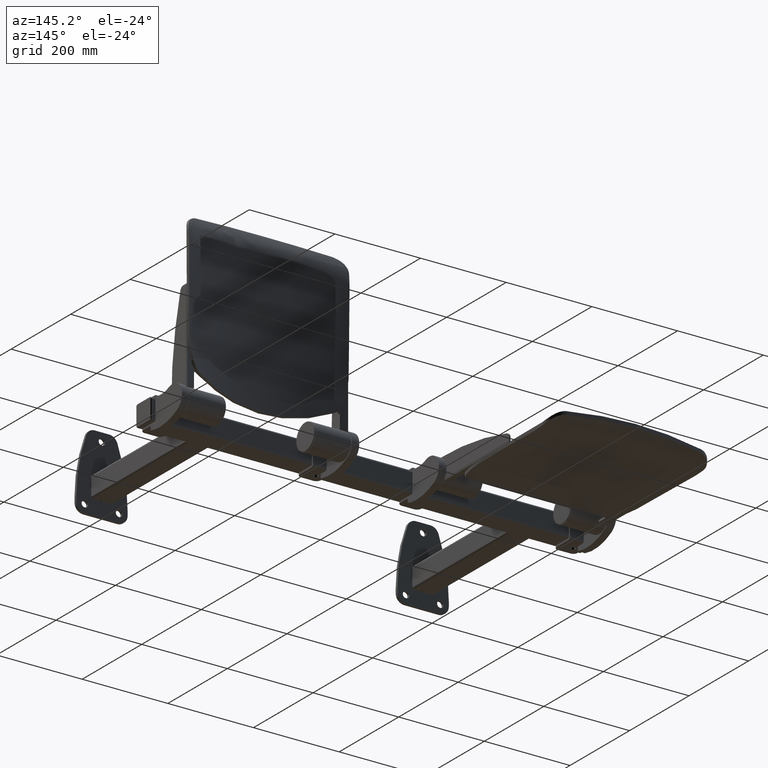
[diagram: clean part render]
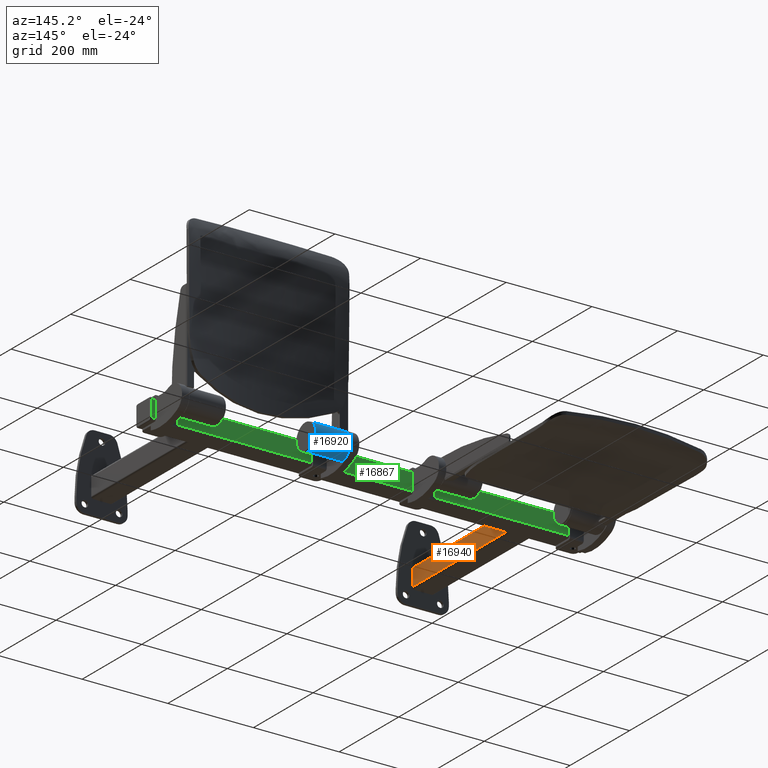
[diagram: same view with three faces highlighted in distinct colors, each labeled with its STEP entity id]
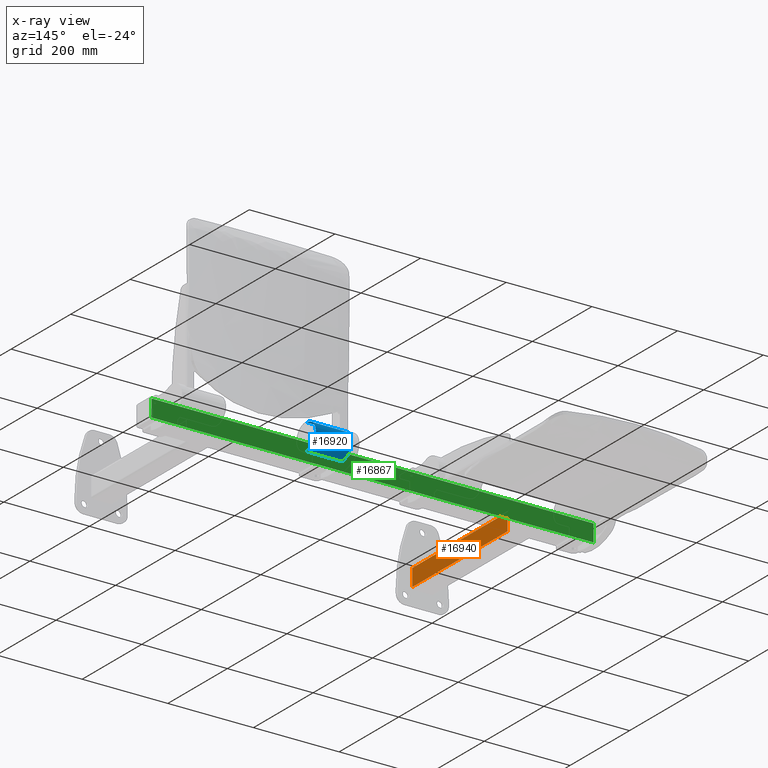
[diagram: x-ray of the same camera — body ghosted, the three highlighted faces saturated]
A machine part, auxiliary view with three faces highlighted in distinct colors.
The next image is the same camera in x-ray (body ghosted, the three faces saturated) — at least one of them is partly hidden behind the body in this view.
Their STEP definitions:

[orange] entity #16940 — the highlighted planar face has unit normal (-1, 0, 0).
#24 = AXIS2_PLACEMENT_3D ( 'NONE', #12895, #12900, #12901 ) ;
#176 = CARTESIAN_POINT ( 'NONE',  ( -349.9999999999999400, 326.0000000000000000, -19.99999999999999600 ) ) ;
#181 = CARTESIAN_POINT ( 'NONE',  ( -349.9999999999999400, 326.0000000000000000, 20.00000000000000000 ) ) ;
#1730 = FACE_OUTER_BOUND ( 'NONE', #14905, .T. ) ;
#1770 = DIRECTION ( 'NONE',  ( -0.0000000000000000000, -0.0000000000000000000, -1.000000000000000000 ) ) ;
#1776 = CARTESIAN_POINT ( 'NONE',  ( -350.0000000000000000, 6.000000000000000000, 25.00000000000000000 ) ) ;
#2029 = VERTEX_POINT ( 'NONE', #176 ) ;
#2034 = VERTEX_POINT ( 'NONE', #181 ) ;
#2381 = CARTESIAN_POINT ( 'NONE',  ( -350.0000000000000000, 6.000000000000000000, 20.00000000000000000 ) ) ;
#2382 = DIRECTION ( 'NONE',  ( -1.734723475976807100E-016, -1.000000000000000000, -0.0000000000000000000 ) ) ;
#2397 = DIRECTION ( 'NONE',  ( -0.0000000000000000000, -0.0000000000000000000, -1.000000000000000000 ) ) ;
#2401 = CARTESIAN_POINT ( 'NONE',  ( -349.9999999999999400, 326.0000000000000000, 25.00000000000000000 ) ) ;
#2404 = CARTESIAN_POINT ( 'NONE',  ( -349.9999999999999400, 326.0000000000000000, -19.99999999999999600 ) ) ;
#2405 = DIRECTION ( 'NONE',  ( 1.734723475976807100E-016, 1.000000000000000000, 0.0000000000000000000 ) ) ;
#6157 = LINE ( 'NONE', #2381, #6164 ) ;
#6164 = VECTOR ( 'NONE', #2382, 1000.000000000000000 ) ;
#6203 = LINE ( 'NONE', #2404, #6209 ) ;
#6209 = VECTOR ( 'NONE', #2405, 1000.000000000000000 ) ;
#6211 = LINE ( 'NONE', #2401, #6216 ) ;
#6216 = VECTOR ( 'NONE', #2397, 1000.000000000000000 ) ;
#12894 = PLANE ( 'NONE',  #24 ) ;
#12895 = CARTESIAN_POINT ( 'NONE',  ( -350.0000000000000000, 6.000000000000000000, 25.00000000000000000 ) ) ;
#12900 = DIRECTION ( 'NONE',  ( -1.000000000000000000, 1.734723475976807100E-016, 0.0000000000000000000 ) ) ;
#12901 = DIRECTION ( 'NONE',  ( -1.734723475976807100E-016, -1.000000000000000000, 0.0000000000000000000 ) ) ;
#13882 = CARTESIAN_POINT ( 'NONE',  ( -350.0000000000000000, 6.000000000000000000, 20.00000000000000000 ) ) ;
#13887 = CARTESIAN_POINT ( 'NONE',  ( -350.0000000000000000, 6.000000000000000000, -19.99999999999999600 ) ) ;
#14455 = ORIENTED_EDGE ( 'NONE', *, *, #15152, .T. ) ;
#14456 = ORIENTED_EDGE ( 'NONE', *, *, #16521, .T. ) ;
#14457 = ORIENTED_EDGE ( 'NONE', *, *, #16523, .F. ) ;
#14469 = ORIENTED_EDGE ( 'NONE', *, *, #16510, .T. ) ;
#14905 = EDGE_LOOP ( 'NONE', ( #14455, #14456, #14457, #14469 ) ) ;
#14912 = VERTEX_POINT ( 'NONE', #13882 ) ;
#14917 = VERTEX_POINT ( 'NONE', #13887 ) ;
#15152 = EDGE_CURVE ( 'NONE', #14912, #14917, #16716, .T. ) ;
#16510 = EDGE_CURVE ( 'NONE', #2034, #14912, #6157, .T. ) ;
#16521 = EDGE_CURVE ( 'NONE', #14917, #2029, #6203, .T. ) ;
#16523 = EDGE_CURVE ( 'NONE', #2034, #2029, #6211, .T. ) ;
#16716 = LINE ( 'NONE', #1776, #16724 ) ;
#16724 = VECTOR ( 'NONE', #1770, 1000.000000000000000 ) ;
#16940 = ADVANCED_FACE ( 'NONE', ( #1730 ), #12894, .F. ) ;

[blue] entity #16920 — the highlighted cylindrical surface (edge-blend (fillet) strip) has radius 30.5 mm, axis along (-1, 0, 0).
#170 = CARTESIAN_POINT ( 'NONE',  ( -188.5000000000000000, 17.99999999999991800, 24.62214450449035000 ) ) ;
#171 = CARTESIAN_POINT ( 'NONE',  ( -188.5000000000000000, 3.735172737399428300E-015, -30.50000000000000000 ) ) ;
#173 = CARTESIAN_POINT ( 'NONE',  ( -188.3698823951482400, 18.82153022471873200, 24.00000000000002100 ) ) ;
#1663 = FACE_OUTER_BOUND ( 'NONE', #14325, .T. ) ;
#1671 = CYLINDRICAL_SURFACE ( 'NONE', #17178, 30.50000000000004300 ) ;
#1894 = CARTESIAN_POINT ( 'NONE',  ( -170.7216098692875300, 15.18417962927588700, 26.45166703604678900 ) ) ;
#1895 = CARTESIAN_POINT ( 'NONE',  ( -184.5000000000000000, -7.518830502887758300E-031, 30.50000000000000000 ) ) ;
#1898 = CARTESIAN_POINT ( 'NONE',  ( -170.5687036239939100, 16.14959166710157500, 25.87355192055945700 ) ) ;
#1899 = CARTESIAN_POINT ( 'NONE',  ( -184.5000000000000000, 17.36646223870187800, 25.07301316778149000 ) ) ;
#1944 = CARTESIAN_POINT ( 'NONE',  ( -184.3116988856748400, 18.55534868448734200, 24.27932724265397000 ) ) ;
#2014 = VERTEX_POINT ( 'NONE', #12605 ) ;
#2020 = VERTEX_POINT ( 'NONE', #12600 ) ;
#2023 = VERTEX_POINT ( 'NONE', #170 ) ;
#2024 = VERTEX_POINT ( 'NONE', #171 ) ;
#2026 = VERTEX_POINT ( 'NONE', #173 ) ;
#2480 = CARTESIAN_POINT ( 'NONE',  ( -106.4999999999999900, 3.735172737399433100E-015, -30.50000000000004300 ) ) ;
#2481 = DIRECTION ( 'NONE',  ( -1.000000000000000000, 0.0000000000000000000, 0.0000000000000000000 ) ) ;
#2482 = CARTESIAN_POINT ( 'NONE',  ( -106.4999999999999900, 0.0000000000000000000, 0.0000000000000000000 ) ) ;
#2483 = DIRECTION ( 'NONE',  ( -1.000000000000000000, 0.0000000000000000000, 0.0000000000000000000 ) ) ;
#2484 = DIRECTION ( 'NONE',  ( 0.0000000000000000000, -2.465190328815658300E-032, 1.000000000000000000 ) ) ;
#4230 = CARTESIAN_POINT ( 'NONE',  ( -106.4999999999999900, -7.518830502887768800E-031, 30.50000000000004300 ) ) ;
#4231 = CARTESIAN_POINT ( 'NONE',  ( -170.5687036239939100, 16.14959166710157500, 25.87355192055945700 ) ) ;
#4232 = DIRECTION ( 'NONE',  ( -1.000000000000000000, 0.0000000000000000000, 0.0000000000000000000 ) ) ;
#4233 = CARTESIAN_POINT ( 'NONE',  ( -170.7216098692875300, 15.18417962927588700, 26.45166703604678900 ) ) ;
#4234 = CARTESIAN_POINT ( 'NONE',  ( -175.4358879174290300, 15.93084791946500500, 26.02305339040149700 ) ) ;
#4235 = CARTESIAN_POINT ( 'NONE',  ( -184.5000000000000000, 0.0000000000000000000, 0.0000000000000000000 ) ) ;
#4236 = DIRECTION ( 'NONE',  ( 1.000000000000000000, -0.0000000000000000000, -0.0000000000000000000 ) ) ;
#4237 = DIRECTION ( 'NONE',  ( 0.0000000000000000000, -2.465190328815658300E-032, 1.000000000000000000 ) ) ;
#4238 = CARTESIAN_POINT ( 'NONE',  ( -170.6196723724251600, 15.83137921009306500, 26.07217177993752000 ) ) ;
#4239 = CARTESIAN_POINT ( 'NONE',  ( -180.0314288730249400, 16.65871010170553400, 25.56322751414898100 ) ) ;
#4240 = CARTESIAN_POINT ( 'NONE',  ( -184.5000000000000000, 17.36646223870187800, 25.07301316778149000 ) ) ;
#4241 = CARTESIAN_POINT ( 'NONE',  ( -179.7833786263088000, 17.52570726888294700, 24.97693627229022800 ) ) ;
#4242 = CARTESIAN_POINT ( 'NONE',  ( -184.3827181275590000, 18.21920469939754400, 24.46038797978172900 ) ) ;
#4243 = CARTESIAN_POINT ( 'NONE',  ( -170.6706411208562900, 15.50950218202607700, 26.26492054208551300 ) ) ;
#4244 = CARTESIAN_POINT ( 'NONE',  ( -170.7216098692875300, 15.18417962927588700, 26.45166703604678900 ) ) ;
#4245 = CARTESIAN_POINT ( 'NONE',  ( -188.4560745817458400, 18.27733417603490600, 24.41939956618009300 ) ) ;
#4246 = CARTESIAN_POINT ( 'NONE',  ( -188.5000000000000000, 17.99999999999991800, 24.62214450449035000 ) ) ;
#4247 = CARTESIAN_POINT ( 'NONE',  ( -175.1783481040838800, 16.83501510587326800, 25.44572860935692700 ) ) ;
#4248 = CARTESIAN_POINT ( 'NONE',  ( -170.5687036239939100, 16.14959166710157500, 25.87355192055945700 ) ) ;
#4249 = CARTESIAN_POINT ( 'NONE',  ( -106.4999999999999900, 18.82153022471873200, 24.00000000000002100 ) ) ;
#4250 = DIRECTION ( 'NONE',  ( 1.000000000000000000, -0.0000000000000000000, -0.0000000000000000000 ) ) ;
#4251 = CARTESIAN_POINT ( 'NONE',  ( -188.4126979199253900, 18.55120364030505800, 24.21199833246198800 ) ) ;
#4252 = CARTESIAN_POINT ( 'NONE',  ( -188.3698823951482400, 18.82153022471873200, 24.00000000000002100 ) ) ;
#4254 = CARTESIAN_POINT ( 'NONE',  ( -188.5000000000000000, 0.0000000000000000000, 0.0000000000000000000 ) ) ;
#4255 = DIRECTION ( 'NONE',  ( -1.000000000000000000, 0.0000000000000000000, 0.0000000000000000000 ) ) ;
#4256 = DIRECTION ( 'NONE',  ( 0.0000000000000000000, -2.465190328815658300E-032, 1.000000000000000000 ) ) ;
#6313 = LINE ( 'NONE', #2480, #6320 ) ;
#6318 = CIRCLE ( 'NONE', #8404, 30.50000000000004300 ) ;
#6320 = VECTOR ( 'NONE', #2481, 1000.000000000000000 ) ;
#7519 = CIRCLE ( 'NONE', #8364, 30.50000000000004300 ) ;
#7523 = LINE ( 'NONE', #4230, #7525 ) ;
#7525 = VECTOR ( 'NONE', #4232, 1000.000000000000000 ) ;
#7527 = LINE ( 'NONE', #4249, #7528 ) ;
#7528 = VECTOR ( 'NONE', #4250, 1000.000000000000000 ) ;
#7529 = CIRCLE ( 'NONE', #8365, 30.50000000000004300 ) ;
#8364 = AXIS2_PLACEMENT_3D ( 'NONE', #4235, #4236, #4237 ) ;
#8365 = AXIS2_PLACEMENT_3D ( 'NONE', #4254, #4255, #4256 ) ;
#8404 = AXIS2_PLACEMENT_3D ( 'NONE', #2482, #2483, #2484 ) ;
#12600 = CARTESIAN_POINT ( 'NONE',  ( -106.4999999999999900, -7.518830502887768800E-031, 30.50000000000004300 ) ) ;
#12605 = CARTESIAN_POINT ( 'NONE',  ( -106.4999999999999900, 3.735172737399428300E-015, -30.50000000000000000 ) ) ;
#12751 = DIRECTION ( 'NONE',  ( -1.000000000000000000, 0.0000000000000000000, 0.0000000000000000000 ) ) ;
#12763 = CARTESIAN_POINT ( 'NONE',  ( -106.4999999999999900, 0.0000000000000000000, 0.0000000000000000000 ) ) ;
#12771 = DIRECTION ( 'NONE',  ( 0.0000000000000000000, -2.465190328815658300E-032, 1.000000000000000000 ) ) ;
#14108 = VERTEX_POINT ( 'NONE', #1944 ) ;
#14202 = ORIENTED_EDGE ( 'NONE', *, *, #16554, .T. ) ;
#14203 = ORIENTED_EDGE ( 'NONE', *, *, #16553, .T. ) ;
#14204 = ORIENTED_EDGE ( 'NONE', *, *, #16441, .F. ) ;
#14205 = ORIENTED_EDGE ( 'NONE', *, *, #16440, .T. ) ;
#14206 = ORIENTED_EDGE ( 'NONE', *, *, #16439, .T. ) ;
#14207 = ORIENTED_EDGE ( 'NONE', *, *, #16438, .T. ) ;
#14208 = ORIENTED_EDGE ( 'NONE', *, *, #16437, .T. ) ;
#14209 = ORIENTED_EDGE ( 'NONE', *, *, #16436, .T. ) ;
#14210 = ORIENTED_EDGE ( 'NONE', *, *, #16435, .T. ) ;
#14211 = ORIENTED_EDGE ( 'NONE', *, *, #16434, .F. ) ;
#14325 = EDGE_LOOP ( 'NONE', ( #14202, #14203, #14204, #14205, #14206, #14207, #14208, #14209, #14210, #14211 ) ) ;
#14480 = VERTEX_POINT ( 'NONE', #1898 ) ;
#14481 = VERTEX_POINT ( 'NONE', #1894 ) ;
#14482 = VERTEX_POINT ( 'NONE', #1899 ) ;
#14483 = VERTEX_POINT ( 'NONE', #1895 ) ;
#16364 = B_SPLINE_CURVE_WITH_KNOTS ( 'NONE', 3,
 ( #4242, #4241, #4247, #4248 ),
 .UNSPECIFIED., .F., .F.,
 ( 4, 4 ),
 ( 2.818592028051833700E-017, 0.01403962647136153400 ),
 .UNSPECIFIED. ) ;
#16382 =( BOUNDED_CURVE ( )  B_SPLINE_CURVE ( 3, ( #4233, #4234, #4239, #4240 ),
 .UNSPECIFIED., .F., .F. ) 
 B_SPLINE_CURVE_WITH_KNOTS ( ( 4, 4 ),
 ( 5.233497647722913400, 5.318155294964991100 ),
 .UNSPECIFIED. ) 
 CURVE ( )  GEOMETRIC_REPRESENTATION_ITEM ( )  RATIONAL_B_SPLINE_CURVE ( ( 1.000000000000000000, 0.9994028460664582400, 0.9994028460664582400, 1.000000000000000000 ) ) 
 REPRESENTATION_ITEM ( '' )  );
#16401 =( BOUNDED_CURVE ( )  B_SPLINE_CURVE ( 3, ( #4246, #4245, #4251, #4252 ),
 .UNSPECIFIED., .F., .T. ) 
 B_SPLINE_CURVE_WITH_KNOTS ( ( 4, 4 ),
 ( 2.202058221736394200, 2.235847437291939200 ),
 .UNSPECIFIED. ) 
 CURVE ( )  GEOMETRIC_REPRESENTATION_ITEM ( )  RATIONAL_B_SPLINE_CURVE ( ( 1.000000000000000000, 0.9999048596723515400, 0.9999048596723515400, 1.000000000000000000 ) ) 
 REPRESENTATION_ITEM ( '' )  );
#16416 = B_SPLINE_CURVE_WITH_KNOTS ( 'NONE', 3,
 ( #4231, #4238, #4243, #4244 ),
 .UNSPECIFIED., .F., .F.,
 ( 4, 4 ),
 ( 0.0000000000000000000, 1.000000000000000000 ),
 .UNSPECIFIED. ) ;
#16434 = EDGE_CURVE ( 'NONE', #2020, #14483, #7523, .T. ) ;
#16435 = EDGE_CURVE ( 'NONE', #14482, #14483, #7519, .T. ) ;
#16436 = EDGE_CURVE ( 'NONE', #14481, #14482, #16382, .T. ) ;
#16437 = EDGE_CURVE ( 'NONE', #14480, #14481, #16416, .T. ) ;
#16438 = EDGE_CURVE ( 'NONE', #14108, #14480, #16364, .T. ) ;
#16439 = EDGE_CURVE ( 'NONE', #2026, #14108, #7527, .T. ) ;
#16440 = EDGE_CURVE ( 'NONE', #2023, #2026, #16401, .T. ) ;
#16441 = EDGE_CURVE ( 'NONE', #2023, #2024, #7529, .T. ) ;
#16553 = EDGE_CURVE ( 'NONE', #2014, #2024, #6313, .T. ) ;
#16554 = EDGE_CURVE ( 'NONE', #2020, #2014, #6318, .T. ) ;
#16920 = ADVANCED_FACE ( 'NONE', ( #1663 ), #1671, .T. ) ;
#17178 = AXIS2_PLACEMENT_3D ( 'NONE', #12763, #12751, #12771 ) ;

[green] entity #16867 — the highlighted planar face has unit normal (0, -1, 0).
#180 = CARTESIAN_POINT ( 'NONE',  ( -516.0000000000000000, 376.0000000000000000, 20.00000000000000000 ) ) ;
#1521 = FACE_OUTER_BOUND ( 'NONE', #14635, .T. ) ;
#1798 = CARTESIAN_POINT ( 'NONE',  ( -516.0000000000000000, 376.0000000000000000, -19.99999999999999600 ) ) ;
#1802 = CARTESIAN_POINT ( 'NONE',  ( 516.0000000000000000, 376.0000000000000000, 20.00000000000000000 ) ) ;
#1804 = CARTESIAN_POINT ( 'NONE',  ( 516.0000000000000000, 376.0000000000000000, -19.99999999999999600 ) ) ;
#2033 = VERTEX_POINT ( 'NONE', #180 ) ;
#2340 = CARTESIAN_POINT ( 'NONE',  ( -516.0000000000000000, 376.0000000000000000, 25.00000000000000000 ) ) ;
#2341 = DIRECTION ( 'NONE',  ( -0.0000000000000000000, -0.0000000000000000000, 1.000000000000000000 ) ) ;
#2358 = DIRECTION ( 'NONE',  ( -1.000000000000000000, 0.0000000000000000000, 0.0000000000000000000 ) ) ;
#2366 = CARTESIAN_POINT ( 'NONE',  ( -518.0000000000000000, 376.0000000000000000, -19.99999999999999600 ) ) ;
#2374 = DIRECTION ( 'NONE',  ( 1.000000000000000000, -0.0000000000000000000, -0.0000000000000000000 ) ) ;
#2384 = CARTESIAN_POINT ( 'NONE',  ( -518.0000000000000000, 376.0000000000000000, 20.00000000000000000 ) ) ;
#2394 = CARTESIAN_POINT ( 'NONE',  ( 516.0000000000000000, 376.0000000000000000, 25.00000000000000000 ) ) ;
#2395 = DIRECTION ( 'NONE',  ( 0.0000000000000000000, 0.0000000000000000000, -1.000000000000000000 ) ) ;
#6090 = LINE ( 'NONE', #2340, #6097 ) ;
#6097 = VECTOR ( 'NONE', #2341, 1000.000000000000000 ) ;
#6144 = LINE ( 'NONE', #2366, #6149 ) ;
#6149 = VECTOR ( 'NONE', #2358, 1000.000000000000000 ) ;
#6179 = LINE ( 'NONE', #2384, #6183 ) ;
#6181 = LINE ( 'NONE', #2394, #6188 ) ;
#6183 = VECTOR ( 'NONE', #2374, 1000.000000000000000 ) ;
#6188 = VECTOR ( 'NONE', #2395, 1000.000000000000000 ) ;
#12450 = PLANE ( 'NONE',  #17055 ) ;
#12451 = CARTESIAN_POINT ( 'NONE',  ( -518.0000000000000000, 376.0000000000000000, 25.00000000000000000 ) ) ;
#12456 = DIRECTION ( 'NONE',  ( 0.0000000000000000000, -1.000000000000000000, 0.0000000000000000000 ) ) ;
#12457 = DIRECTION ( 'NONE',  ( 0.0000000000000000000, -0.0000000000000000000, -1.000000000000000000 ) ) ;
#14336 = ORIENTED_EDGE ( 'NONE', *, *, #16515, .T. ) ;
#14337 = ORIENTED_EDGE ( 'NONE', *, *, #16516, .T. ) ;
#14338 = ORIENTED_EDGE ( 'NONE', *, *, #16506, .T. ) ;
#14339 = ORIENTED_EDGE ( 'NONE', *, *, #16492, .T. ) ;
#14620 = VERTEX_POINT ( 'NONE', #1802 ) ;
#14621 = VERTEX_POINT ( 'NONE', #1804 ) ;
#14622 = VERTEX_POINT ( 'NONE', #1798 ) ;
#14635 = EDGE_LOOP ( 'NONE', ( #14336, #14337, #14338, #14339 ) ) ;
#16492 = EDGE_CURVE ( 'NONE', #14622, #2033, #6090, .T. ) ;
#16506 = EDGE_CURVE ( 'NONE', #14621, #14622, #6144, .T. ) ;
#16515 = EDGE_CURVE ( 'NONE', #2033, #14620, #6179, .T. ) ;
#16516 = EDGE_CURVE ( 'NONE', #14620, #14621, #6181, .T. ) ;
#16867 = ADVANCED_FACE ( 'NONE', ( #1521 ), #12450, .F. ) ;
#17055 = AXIS2_PLACEMENT_3D ( 'NONE', #12451, #12456, #12457 ) ;